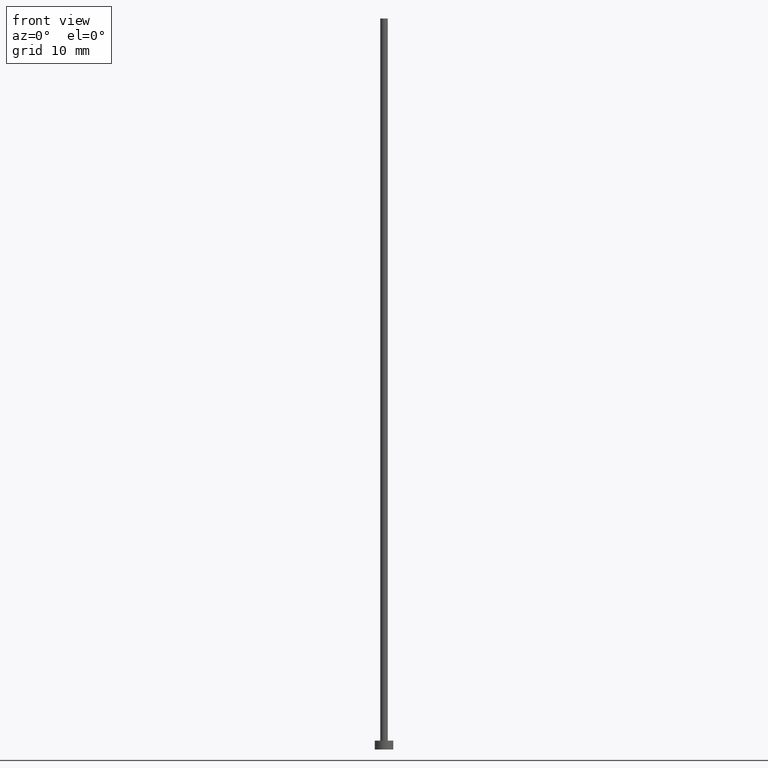
[diagram: clean part render]
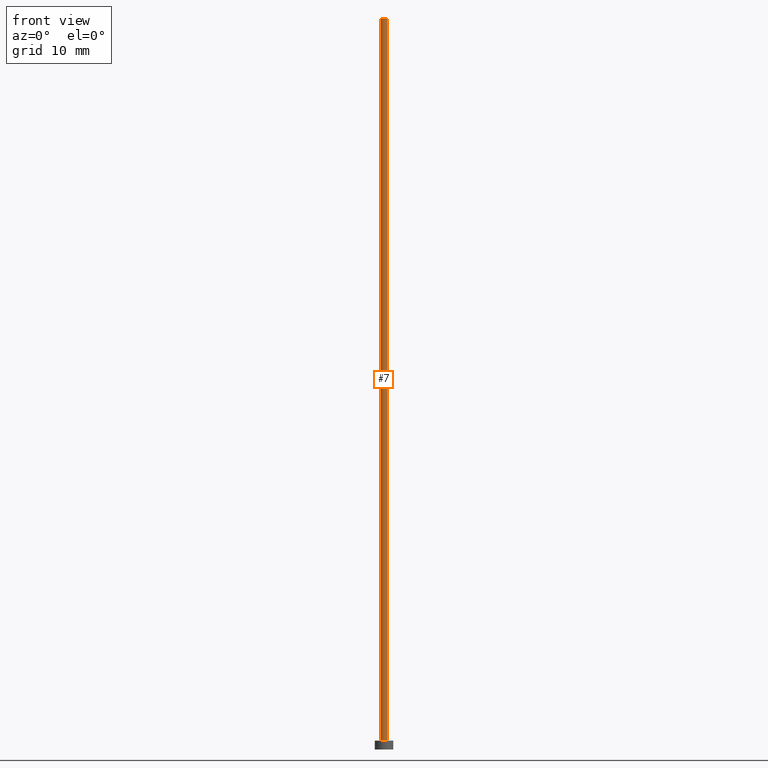
[diagram: same view with one face highlighted and labeled with its STEP entity id]
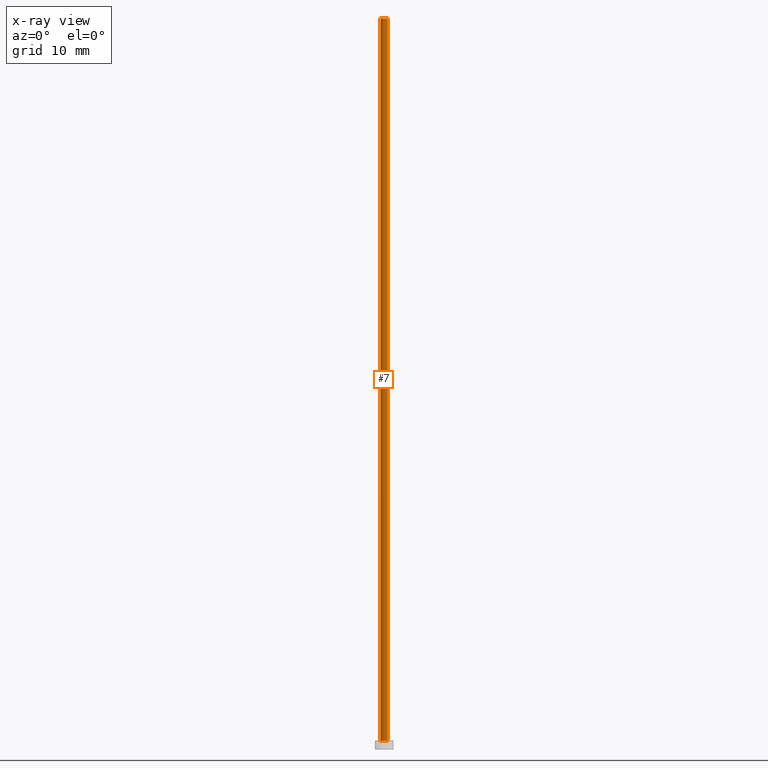
[diagram: x-ray of the same camera — body ghosted, the highlighted face saturated]
A machine part, front view. The second image highlights one B-rep face of the part: STEP entity #7.
The next image is the same camera in x-ray: the body ghosted, the highlighted face saturated — about 0% of this face is hidden behind the body in this view.
In plain terms, the highlighted cylindrical surface (edge-blend (fillet) strip) has radius 0.5 mm, axis along (-0, -0, -1).
Its self-contained STEP definition (entity closure, byte-faithful):
#2 = DIRECTION ( 'NONE',  ( 1.000000000000000000, 0.000000000000000000, 0.000000000000000000 ) ) ;
#6 = VECTOR ( 'NONE', #154, 1000.000000000000000 ) ;
#7 = ADVANCED_FACE ( 'NONE', ( #123 ), #51, .T. ) ;
#8 = DIRECTION ( 'NONE',  ( -1.000000000000000000, 0.000000000000000000, 0.000000000000000000 ) ) ;
#10 = DIRECTION ( 'NONE',  ( -0.000000000000000000, -0.000000000000000000, -1.000000000000000000 ) ) ;
#25 = AXIS2_PLACEMENT_3D ( 'NONE', #133, #61, #2 ) ;
#36 = CARTESIAN_POINT ( 'NONE',  ( 0.000000000000000000, 0.000000000000000000, 99.00000000000000000 ) ) ;
#50 = ORIENTED_EDGE ( 'NONE', *, *, #241, .T. ) ;
#51 = CYLINDRICAL_SURFACE ( 'NONE', #99, 0.5000000000000000000 ) ;
#52 = ORIENTED_EDGE ( 'NONE', *, *, #205, .F. ) ;
#53 = CARTESIAN_POINT ( 'NONE',  ( -0.5000000000000000000, 0.000000000000000000, 1.199999999999999956 ) ) ;
#55 = DIRECTION ( 'NONE',  ( 0.000000000000000000, 0.000000000000000000, 1.000000000000000000 ) ) ;
#56 = EDGE_CURVE ( 'NONE', #201, #187, #169, .T. ) ;
#61 = DIRECTION ( 'NONE',  ( 0.000000000000000000, 0.000000000000000000, 1.000000000000000000 ) ) ;
#70 = CARTESIAN_POINT ( 'NONE',  ( 0.5000000000000000000, 6.123233995736766036E-17, 99.00000000000000000 ) ) ;
#95 = CARTESIAN_POINT ( 'NONE',  ( 0.5000000000000000000, 6.123233995736766036E-17, 99.00000000000000000 ) ) ;
#99 = AXIS2_PLACEMENT_3D ( 'NONE', #105, #10, #8 ) ;
#105 = CARTESIAN_POINT ( 'NONE',  ( 0.000000000000000000, 0.000000000000000000, 99.00000000000000000 ) ) ;
#106 = VERTEX_POINT ( 'NONE', #155 ) ;
#108 = DIRECTION ( 'NONE',  ( 1.000000000000000000, 0.000000000000000000, 0.000000000000000000 ) ) ;
#114 = AXIS2_PLACEMENT_3D ( 'NONE', #36, #55, #108 ) ;
#121 = VERTEX_POINT ( 'NONE', #53 ) ;
#123 = FACE_OUTER_BOUND ( 'NONE', #243, .T. ) ;
#128 = CARTESIAN_POINT ( 'NONE',  ( 0.5000000000000000000, 6.123233995736766036E-17, 1.199999999999999956 ) ) ;
#133 = CARTESIAN_POINT ( 'NONE',  ( 0.000000000000000000, 0.000000000000000000, 1.199999999999999956 ) ) ;
#134 = VECTOR ( 'NONE', #210, 1000.000000000000000 ) ;
#142 = CIRCLE ( 'NONE', #25, 0.5000000000000000000 ) ;
#143 = ORIENTED_EDGE ( 'NONE', *, *, #56, .F. ) ;
#154 = DIRECTION ( 'NONE',  ( -0.000000000000000000, -0.000000000000000000, -1.000000000000000000 ) ) ;
#155 = CARTESIAN_POINT ( 'NONE',  ( -0.5000000000000000000, 0.000000000000000000, 99.00000000000000000 ) ) ;
#169 = LINE ( 'NONE', #95, #6 ) ;
#182 = ORIENTED_EDGE ( 'NONE', *, *, #183, .T. ) ;
#183 = EDGE_CURVE ( 'NONE', #106, #121, #235, .T. ) ;
#187 = VERTEX_POINT ( 'NONE', #128 ) ;
#201 = VERTEX_POINT ( 'NONE', #70 ) ;
#205 = EDGE_CURVE ( 'NONE', #106, #201, #249, .T. ) ;
#210 = DIRECTION ( 'NONE',  ( -0.000000000000000000, -0.000000000000000000, -1.000000000000000000 ) ) ;
#235 = LINE ( 'NONE', #246, #134 ) ;
#241 = EDGE_CURVE ( 'NONE', #121, #187, #142, .T. ) ;
#243 = EDGE_LOOP ( 'NONE', ( #143, #52, #182, #50 ) ) ;
#246 = CARTESIAN_POINT ( 'NONE',  ( -0.5000000000000000000, 0.000000000000000000, 99.00000000000000000 ) ) ;
#249 = CIRCLE ( 'NONE', #114, 0.5000000000000000000 ) ;